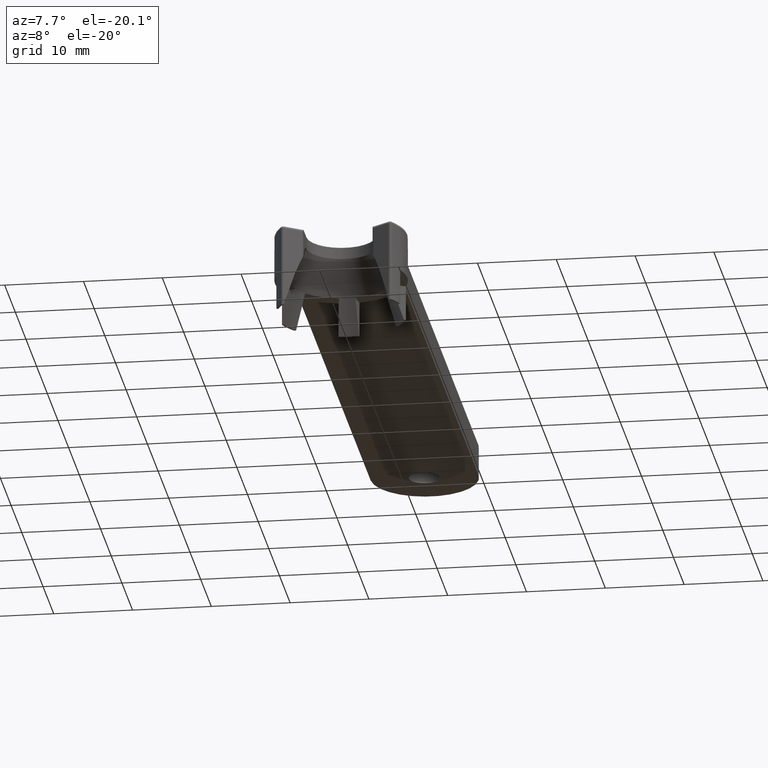
[diagram: clean part render]
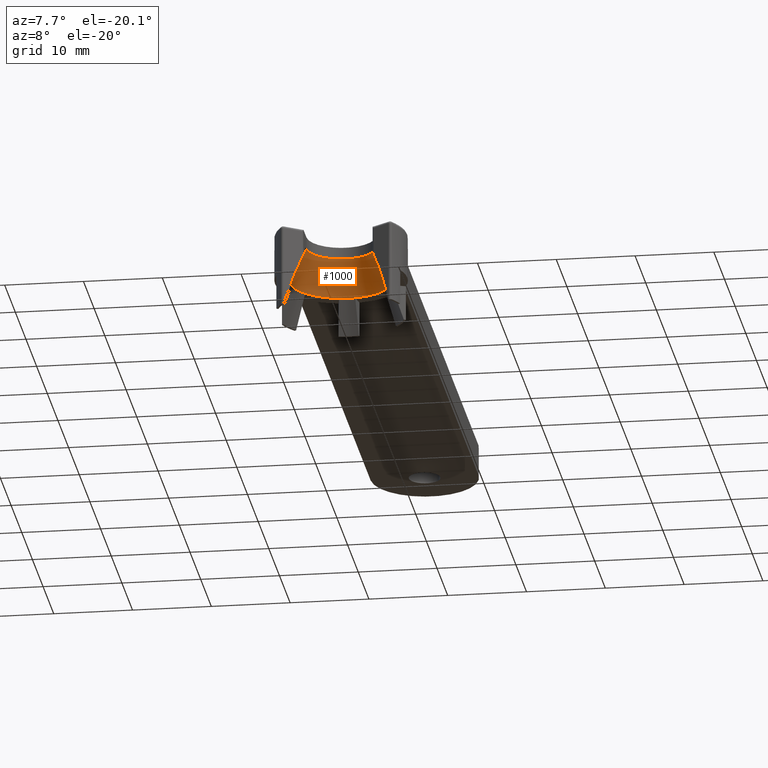
[diagram: same view with one face highlighted and labeled with its STEP entity id]
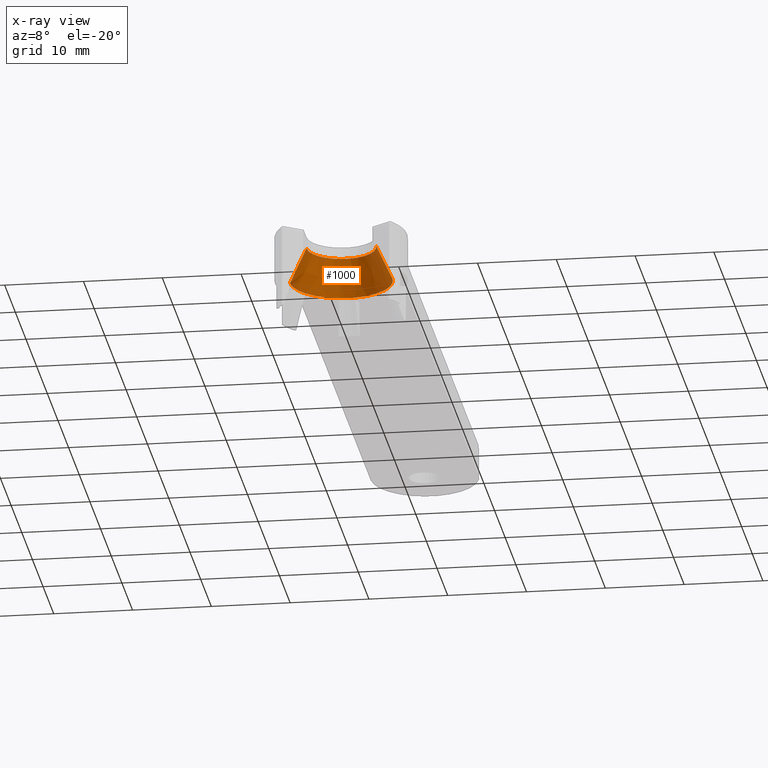
[diagram: x-ray of the same camera — body ghosted, the highlighted face saturated]
A machine part, auxiliary view. The second image highlights one B-rep face of the part: STEP entity #1000.
The next image is the same camera in x-ray: the body ghosted, the highlighted face saturated — about 0% of this face is hidden behind the body in this view.
In plain terms, the highlighted conical surface has half-angle 25 deg.
Its self-contained STEP definition (entity closure, byte-faithful):
#133 = EDGE_CURVE ( 'NONE', #1297, #1396, #1050, .T. ) ;
#135 = DIRECTION ( 'NONE',  ( 1.000000000000000000, 0.0000000000000000000, 2.956915015869557300E-016 ) ) ;
#157 = ORIENTED_EDGE ( 'NONE', *, *, #133, .F. ) ;
#159 = EDGE_CURVE ( 'NONE', #479, #1447, #595, .T. ) ;
#164 = DIRECTION ( 'NONE',  ( 0.0000000000000000000, 0.0000000000000000000, -1.000000000000000000 ) ) ;
#171 = EDGE_CURVE ( 'NONE', #1831, #1700, #1004, .T. ) ;
#184 = VERTEX_POINT ( 'NONE', #1554 ) ;
#186 = ORIENTED_EDGE ( 'NONE', *, *, #171, .T. ) ;
#215 = EDGE_CURVE ( 'NONE', #1447, #1483, #908, .T. ) ;
#273 = VERTEX_POINT ( 'NONE', #599 ) ;
#276 = CARTESIAN_POINT ( 'NONE',  ( 0.0000000000000000000, 0.0000000000000000000, -5.999999999999894300 ) ) ;
#286 = CARTESIAN_POINT ( 'NONE',  ( 4.400000000000000400, -9.024550854674569600E-010, -1.499999999999999800 ) ) ;
#350 = CARTESIAN_POINT ( 'NONE',  ( 0.0000000000000000000, 0.0000000000000000000, -5.999999999999894300 ) ) ;
#352 = DIRECTION ( 'NONE',  ( -1.000000000000000000, 0.0000000000000000000, 0.0000000000000000000 ) ) ;
#362 = CARTESIAN_POINT ( 'NONE',  ( 0.0000000000000000000, 0.0000000000000000000, -6.000000000000000000 ) ) ;
#367 = CARTESIAN_POINT ( 'NONE',  ( 4.982413262021810700, 4.171877119761823800, -5.999999999999947600 ) ) ;
#384 = DIRECTION ( 'NONE',  ( 0.0000000000000000000, 0.0000000000000000000, -1.000000000000000000 ) ) ;
#410 = CARTESIAN_POINT ( 'NONE',  ( 6.498384461999975800, -2.665680423002690500E-009, -5.999999999999947600 ) ) ;
#423 = DIRECTION ( 'NONE',  ( -1.000000000000000000, 0.0000000000000000000, -1.628375985652559100E-014 ) ) ;
#444 = CARTESIAN_POINT ( 'NONE',  ( 0.0000000000000000000, 0.0000000000000000000, -5.999999999999894300 ) ) ;
#463 = EDGE_CURVE ( 'NONE', #1700, #273, #1131, .T. ) ;
#479 = VERTEX_POINT ( 'NONE', #367 ) ;
#482 = DIRECTION ( 'NONE',  ( 0.0000000000000000000, 0.0000000000000000000, -1.000000000000000000 ) ) ;
#486 = CARTESIAN_POINT ( 'NONE',  ( 0.0000000000000000000, 0.0000000000000000000, -6.000000000000000000 ) ) ;
#492 = ORIENTED_EDGE ( 'NONE', *, *, #463, .T. ) ;
#504 = DIRECTION ( 'NONE',  ( -1.000000000000000000, 0.0000000000000000000, 0.0000000000000000000 ) ) ;
#505 = DIRECTION ( 'NONE',  ( 0.0000000000000000000, 0.0000000000000000000, -1.000000000000000000 ) ) ;
#508 = EDGE_CURVE ( 'NONE', #273, #1243, #666, .T. ) ;
#528 = EDGE_CURVE ( 'NONE', #1483, #1396, #1023, .T. ) ;
#529 = CONICAL_SURFACE ( 'NONE', #573, 4.400000000000000400, 0.4363323130537993800 ) ;
#573 = AXIS2_PLACEMENT_3D ( 'NONE', #691, #384, #352 ) ;
#595 = CIRCLE ( 'NONE', #597, 6.498384461999998900 ) ;
#597 = AXIS2_PLACEMENT_3D ( 'NONE', #1225, #482, #1272 ) ;
#599 = CARTESIAN_POINT ( 'NONE',  ( -1.121744935384117300, 6.400835017081999600, -5.999999999999947600 ) ) ;
#600 = CIRCLE ( 'NONE', #1418, 6.498384461999950900 ) ;
#640 = DIRECTION ( 'NONE',  ( -1.000000000000000000, 0.0000000000000000000, 0.0000000000000000000 ) ) ;
#666 = CIRCLE ( 'NONE', #880, 6.498384461999998900 ) ;
#691 = CARTESIAN_POINT ( 'NONE',  ( 0.0000000000000000000, 0.0000000000000000000, -1.500000000000000000 ) ) ;
#708 = ORIENTED_EDGE ( 'NONE', *, *, #508, .T. ) ;
#720 = ORIENTED_EDGE ( 'NONE', *, *, #1034, .T. ) ;
#767 = CARTESIAN_POINT ( 'NONE',  ( -5.106084441630415000, 4.019564938012924100, -5.999999999999947600 ) ) ;
#768 = CIRCLE ( 'NONE', #947, 6.498384461999999800 ) ;
#776 = DIRECTION ( 'NONE',  ( 0.0000000000000000000, 0.0000000000000000000, -1.000000000000000000 ) ) ;
#809 = CARTESIAN_POINT ( 'NONE',  ( -4.400000000000000400, -9.024550854674571600E-010, -1.499999999374288700 ) ) ;
#812 = DIRECTION ( 'NONE',  ( 0.0000000000000000000, 0.0000000000000000000, -1.000000000000000000 ) ) ;
#838 = DIRECTION ( 'NONE',  ( -0.4226182617907430200, 0.0000000000000000000, -0.9063077870133142700 ) ) ;
#852 = DIRECTION ( 'NONE',  ( 0.0000000000000000000, 0.0000000000000000000, -1.000000000000000000 ) ) ;
#857 = AXIS2_PLACEMENT_3D ( 'NONE', #1246, #812, #504 ) ;
#880 = AXIS2_PLACEMENT_3D ( 'NONE', #444, #164, #1746 ) ;
#883 = VECTOR ( 'NONE', #838, 1000.000000000000000 ) ;
#908 = CIRCLE ( 'NONE', #857, 6.498384461999999800 ) ;
#918 = DIRECTION ( 'NONE',  ( -1.000000000000000000, 0.0000000000000000000, 0.0000000000000000000 ) ) ;
#926 = DIRECTION ( 'NONE',  ( 0.0000000000000000000, 0.0000000000000000000, -1.000000000000000000 ) ) ;
#947 = AXIS2_PLACEMENT_3D ( 'NONE', #486, #776, #1677 ) ;
#986 = ORIENTED_EDGE ( 'NONE', *, *, #528, .T. ) ;
#992 = CARTESIAN_POINT ( 'NONE',  ( 6.034087568846379300, 2.412216372437674400, -5.999999999999894300 ) ) ;
#1000 = ADVANCED_FACE ( 'NONE', ( #1407 ), #529, .F. ) ;
#1004 = CIRCLE ( 'NONE', #1086, 6.498384461999998900 ) ;
#1005 = CARTESIAN_POINT ( 'NONE',  ( 0.9280031270439402800, 6.431781309416520800, -5.999999999999947600 ) ) ;
#1023 = LINE ( 'NONE', #1454, #1072 ) ;
#1034 = EDGE_CURVE ( 'NONE', #1297, #184, #1284, .T. ) ;
#1050 = CIRCLE ( 'NONE', #1828, 4.400000000000000400 ) ;
#1072 = VECTOR ( 'NONE', #1333, 1000.000000000000000 ) ;
#1086 = AXIS2_PLACEMENT_3D ( 'NONE', #276, #852, #423 ) ;
#1130 = AXIS2_PLACEMENT_3D ( 'NONE', #362, #505, #640 ) ;
#1131 = CIRCLE ( 'NONE', #1130, 6.498384461999999800 ) ;
#1164 = CARTESIAN_POINT ( 'NONE',  ( 0.0000000000000000000, 0.0000000000000000000, -1.500000000000001300 ) ) ;
#1206 = DIRECTION ( 'NONE',  ( -0.0000000000000000000, -0.0000000000000000000, -1.000000000000000000 ) ) ;
#1221 = CARTESIAN_POINT ( 'NONE',  ( -6.104158198907828000, 2.228957895221245400, -5.999999999999894300 ) ) ;
#1225 = CARTESIAN_POINT ( 'NONE',  ( 0.0000000000000000000, 0.0000000000000000000, -5.999999999999894300 ) ) ;
#1243 = VERTEX_POINT ( 'NONE', #1005 ) ;
#1246 = CARTESIAN_POINT ( 'NONE',  ( 0.0000000000000000000, 0.0000000000000000000, -6.000000000000000000 ) ) ;
#1262 = EDGE_CURVE ( 'NONE', #1243, #479, #768, .T. ) ;
#1272 = DIRECTION ( 'NONE',  ( -1.000000000000000000, 0.0000000000000000000, -1.628375985652559100E-014 ) ) ;
#1284 = LINE ( 'NONE', #1817, #883 ) ;
#1297 = VERTEX_POINT ( 'NONE', #809 ) ;
#1333 = DIRECTION ( 'NONE',  ( -0.4226182617907430200, 1.733609088929423100E-010, 0.9063077870133142700 ) ) ;
#1396 = VERTEX_POINT ( 'NONE', #286 ) ;
#1407 = FACE_OUTER_BOUND ( 'NONE', #1671, .T. ) ;
#1412 = ORIENTED_EDGE ( 'NONE', *, *, #159, .T. ) ;
#1418 = AXIS2_PLACEMENT_3D ( 'NONE', #350, #926, #918 ) ;
#1447 = VERTEX_POINT ( 'NONE', #992 ) ;
#1454 = CARTESIAN_POINT ( 'NONE',  ( 5.449192231000000500, -2.235296018434412600E-009, -3.750000000000000000 ) ) ;
#1483 = VERTEX_POINT ( 'NONE', #410 ) ;
#1554 = CARTESIAN_POINT ( 'NONE',  ( -6.498384461999975800, -5.835132648773735300E-010, -5.999999999999947600 ) ) ;
#1559 = ORIENTED_EDGE ( 'NONE', *, *, #1699, .T. ) ;
#1671 = EDGE_LOOP ( 'NONE', ( #1412, #1676, #986, #157, #720, #1559, #186, #492, #708, #1837 ) ) ;
#1676 = ORIENTED_EDGE ( 'NONE', *, *, #215, .T. ) ;
#1677 = DIRECTION ( 'NONE',  ( -1.000000000000000000, 0.0000000000000000000, 0.0000000000000000000 ) ) ;
#1699 = EDGE_CURVE ( 'NONE', #184, #1831, #600, .T. ) ;
#1700 = VERTEX_POINT ( 'NONE', #767 ) ;
#1746 = DIRECTION ( 'NONE',  ( -1.000000000000000000, 0.0000000000000000000, -1.628375985652559100E-014 ) ) ;
#1817 = CARTESIAN_POINT ( 'NONE',  ( -5.449192231000000500, 0.0000000000000000000, -3.750000000000000000 ) ) ;
#1828 = AXIS2_PLACEMENT_3D ( 'NONE', #1164, #1206, #135 ) ;
#1831 = VERTEX_POINT ( 'NONE', #1221 ) ;
#1837 = ORIENTED_EDGE ( 'NONE', *, *, #1262, .T. ) ;